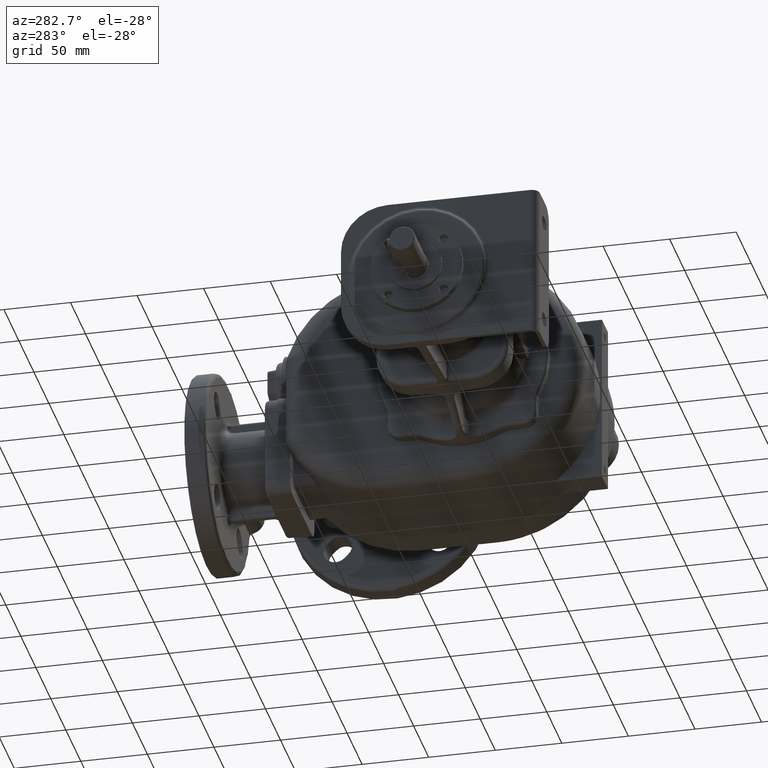
[diagram: clean part render]
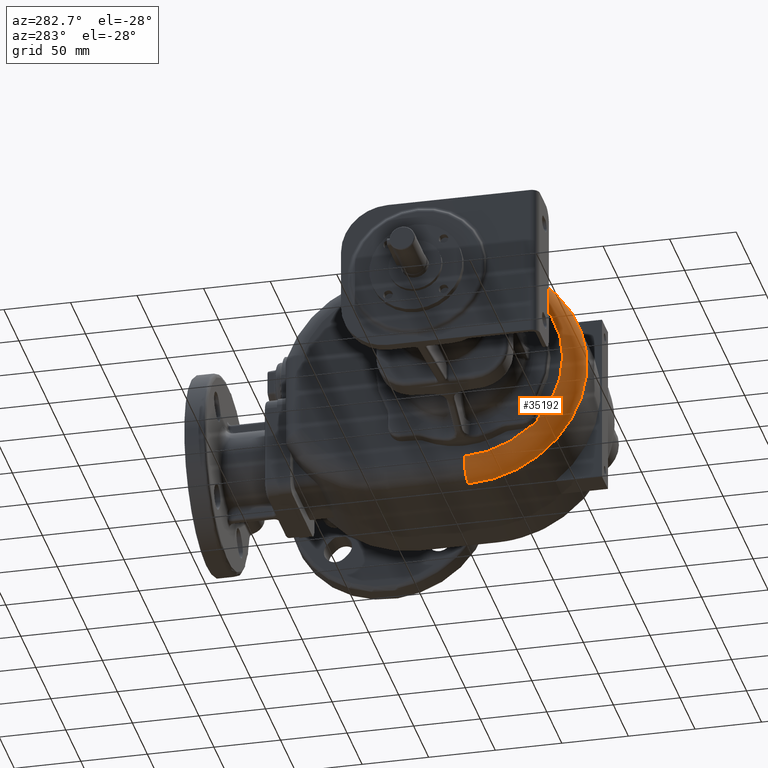
[diagram: same view with one face highlighted and labeled with its STEP entity id]
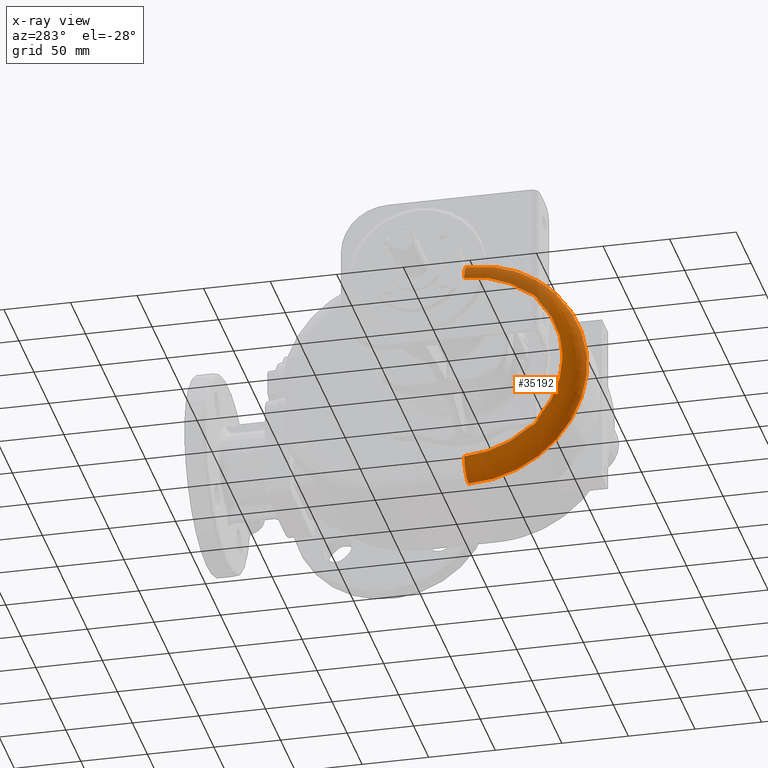
[diagram: x-ray of the same camera — body ghosted, the highlighted face saturated]
A machine part, auxiliary view. The second image highlights one B-rep face of the part: STEP entity #35192.
The next image is the same camera in x-ray: the body ghosted, the highlighted face saturated — about 17% of this face is hidden behind the body in this view.
In plain terms, the highlighted toroidal blend (fillet) surface has major radius 74 mm and minor (blend) radius 15 mm.
Its self-contained STEP definition (entity closure, byte-faithful):
#7487=CARTESIAN_POINT('',(-5.5E1,9.E1,0.E0));
#7488=DIRECTION('',(-1.E0,0.E0,0.E0));
#7489=DIRECTION('',(0.E0,0.E0,-1.E0));
#7490=AXIS2_PLACEMENT_3D('',#7487,#7488,#7489);
#7519=CARTESIAN_POINT('',(-7.E1,4.113389697939E1,-5.557071149067E1));
#7520=CARTESIAN_POINT('',(-7.E1,4.100834799897E1,-5.553276547036E1));
#7521=CARTESIAN_POINT('',(-6.999940865266E1,4.075854339994E1,
-5.545189538679E1));
#7522=CARTESIAN_POINT('',(-6.999712819687E1,4.038811304045E1,
-5.531568146909E1));
#7523=CARTESIAN_POINT('',(-6.999382106276E1,4.002317315893E1,
-5.516494956896E1));
#7524=CARTESIAN_POINT('',(-6.998982247787E1,3.966388818951E1,
-5.499971586116E1));
#7525=CARTESIAN_POINT('',(-6.998545162825E1,3.931148783948E1,
-5.482051202024E1));
#7526=CARTESIAN_POINT('',(-6.998098774072E1,3.896618793654E1,
-5.462744080697E1));
#7527=CARTESIAN_POINT('',(-6.997668758434E1,3.862897335330E1,
-5.442104999505E1));
#7528=CARTESIAN_POINT('',(-6.997276529736E1,3.830006693124E1,
-5.420149019882E1));
#7529=CARTESIAN_POINT('',(-6.996940724260E1,3.798025323308E1,
-5.396929160829E1));
#7530=CARTESIAN_POINT('',(-6.996675871345E1,3.766984630168E1,
-5.372470700687E1));
#7531=CARTESIAN_POINT('',(-6.996493147480E1,3.736938491667E1,
-5.346816636407E1));
#7532=CARTESIAN_POINT('',(-6.996399950805E1,3.707935215606E1,
-5.320010264157E1));
#7533=CARTESIAN_POINT('',(-6.996399893544E1,3.680013966244E1,
-5.292090352451E1));
#7534=CARTESIAN_POINT('',(-6.996493105397E1,3.653186498445E1,
-5.263065671596E1));
#7535=CARTESIAN_POINT('',(-6.996675941536E1,3.627522077447E1,
-5.233006407648E1));
#7536=CARTESIAN_POINT('',(-6.996940701071E1,3.603072465239E1,
-5.201976951938E1));
#7537=CARTESIAN_POINT('',(-6.997276667658E1,3.579842541484E1,
-5.169981065117E1));
#7538=CARTESIAN_POINT('',(-6.997668687462E1,3.557898738792E1,
-5.137108588497E1));
#7539=CARTESIAN_POINT('',(-6.998098958591E1,3.537247407558E1,
-5.103366629454E1));
#7540=CARTESIAN_POINT('',(-6.998545083848E1,3.517952299856E1,
-5.068857798368E1));
#7541=CARTESIAN_POINT('',(-6.998982424885E1,3.500020991990E1,
-5.033595818771E1));
#7542=CARTESIAN_POINT('',(-6.999382015162E1,3.483509075606E1,
-4.997691777959E1));
#7543=CARTESIAN_POINT('',(-6.999712939536E1,3.468426064746E1,
-4.961174375381E1));
#7544=CARTESIAN_POINT('',(-6.999940860393E1,3.454809893063E1,
-4.924143390710E1));
#7545=CARTESIAN_POINT('',(-7.E1,3.446723065668E1,-4.899163918688E1));
#7546=CARTESIAN_POINT('',(-7.E1,3.442928850933E1,-4.886610302061E1));
#7548=CARTESIAN_POINT('',(-7.E1,3.442928850933E1,4.886610302061E1));
#7549=CARTESIAN_POINT('',(-7.E1,3.446723087214E1,4.899163989974E1));
#7550=CARTESIAN_POINT('',(-6.999940859270E1,3.454809960215E1,4.924143572136E1));
#7551=CARTESIAN_POINT('',(-6.999712941221E1,3.468425979877E1,4.961174161490E1));
#7552=CARTESIAN_POINT('',(-6.999382012701E1,3.483509185709E1,4.997692036371E1));
#7553=CARTESIAN_POINT('',(-6.998982424792E1,3.500020993348E1,5.033595817086E1));
#7554=CARTESIAN_POINT('',(-6.998545081531E1,3.517952396188E1,5.068857984457E1));
#7555=CARTESIAN_POINT('',(-6.998098956662E1,3.537247496559E1,5.103366778306E1));
#7556=CARTESIAN_POINT('',(-6.997668685427E1,3.557898836623E1,5.137108747016E1));
#7557=CARTESIAN_POINT('',(-6.997276664062E1,3.579842768950E1,5.169981389086E1));
#7558=CARTESIAN_POINT('',(-6.996940699557E1,3.603072570092E1,5.201977095162E1));
#7559=CARTESIAN_POINT('',(-6.996675938571E1,3.627522431760E1,5.233006834185E1));
#7560=CARTESIAN_POINT('',(-6.996493107058E1,3.653186287497E1,5.263065420530E1));
#7561=CARTESIAN_POINT('',(-6.996399894219E1,3.680013627897E1,5.292089998389E1));
#7562=CARTESIAN_POINT('',(-6.996399949749E1,3.707934836723E1,5.320009910329E1));
#7563=CARTESIAN_POINT('',(-6.996493148203E1,3.736938620998E1,5.346816747817E1));
#7564=CARTESIAN_POINT('',(-6.996675868076E1,3.766984185147E1,5.372470336501E1));
#7565=CARTESIAN_POINT('',(-6.996940725732E1,3.798025488899E1,5.396929287810E1));
#7566=CARTESIAN_POINT('',(-6.997276525637E1,3.830006320184E1,5.420148758430E1));
#7567=CARTESIAN_POINT('',(-6.997668760034E1,3.862897474049E1,5.442105091403E1));
#7568=CARTESIAN_POINT('',(-6.998098771283E1,3.896618572211E1,5.462743949294E1));
#7569=CARTESIAN_POINT('',(-6.998545164288E1,3.931148900656E1,5.482051266805E1));
#7570=CARTESIAN_POINT('',(-6.998982246221E1,3.966388691734E1,5.499971521451E1));
#7571=CARTESIAN_POINT('',(-6.999382106859E1,4.002317349287E1,5.516494977137E1));
#7572=CARTESIAN_POINT('',(-6.999712821639E1,4.038811567086E1,5.531568248142E1));
#7573=CARTESIAN_POINT('',(-6.999940864829E1,4.075854301233E1,5.545189521985E1));
#7574=CARTESIAN_POINT('',(-7.E1,4.100834781196E1,5.553276541384E1));
#7575=CARTESIAN_POINT('',(-7.E1,4.113389697939E1,5.557071149067E1));
#7577=CARTESIAN_POINT('',(-5.5E1,9.E1,-7.4E1));
#7578=DIRECTION('',(0.E0,-1.E0,0.E0));
#7579=DIRECTION('',(-1.E0,0.E0,0.E0));
#7580=AXIS2_PLACEMENT_3D('',#7577,#7578,#7579);
#7737=CARTESIAN_POINT('',(-7.E1,9.E1,0.E0));
#7738=DIRECTION('',(-1.E0,0.E0,0.E0));
#7739=DIRECTION('',(0.E0,0.E0,-1.E0));
#7740=AXIS2_PLACEMENT_3D('',#7737,#7738,#7739);
#7764=CARTESIAN_POINT('',(-7.E1,9.E1,0.E0));
#7765=DIRECTION('',(-1.E0,0.E0,0.E0));
#7766=DIRECTION('',(0.E0,-6.603527435217E-1,7.509555606847E-1));
#7767=AXIS2_PLACEMENT_3D('',#7764,#7765,#7766);
#7885=CARTESIAN_POINT('',(-7.E1,9.E1,0.E0));
#7886=DIRECTION('',(-1.E0,0.E0,0.E0));
#7887=DIRECTION('',(0.E0,-7.509555606847E-1,-6.603527435217E-1));
#7888=AXIS2_PLACEMENT_3D('',#7885,#7886,#7887);
#22172=CARTESIAN_POINT('',(-5.5E1,9.E1,7.4E1));
#22173=DIRECTION('',(0.E0,1.E0,0.E0));
#22174=DIRECTION('',(-1.E0,0.E0,0.E0));
#22175=AXIS2_PLACEMENT_3D('',#22172,#22173,#22174);
#23667=CARTESIAN_POINT('',(-7.E1,9.E1,-7.4E1));
#23668=VERTEX_POINT('',#23667);
#23669=CARTESIAN_POINT('',(-5.5E1,9.000000000001E1,-8.9E1));
#23670=VERTEX_POINT('',#23669);
#23671=CARTESIAN_POINT('',(-5.5E1,9.E1,8.9E1));
#23672=VERTEX_POINT('',#23671);
#23673=CARTESIAN_POINT('',(-7.E1,9.E1,7.4E1));
#23675=VERTEX_POINT('',#23673);
#25451=CARTESIAN_POINT('',(-7.E1,4.113389697939E1,-5.557071149067E1));
#25452=VERTEX_POINT('',#25451);
#25453=CARTESIAN_POINT('',(-7.E1,3.442928850933E1,-4.886610302061E1));
#25455=VERTEX_POINT('',#25453);
#25463=CARTESIAN_POINT('',(-7.E1,3.442928850933E1,4.886610302061E1));
#25464=VERTEX_POINT('',#25463);
#25465=CARTESIAN_POINT('',(-7.E1,4.113389697939E1,5.557071149067E1));
#25466=VERTEX_POINT('',#25465);
#35170=CARTESIAN_POINT('',(-5.5E1,9.E1,0.E0));
#35171=DIRECTION('',(-1.E0,0.E0,0.E0));
#35172=DIRECTION('',(0.E0,5.454021871669E-3,-9.999851267121E-1));
#35173=AXIS2_PLACEMENT_3D('',#35170,#35171,#35172);
#35174=TOROIDAL_SURFACE('',#35173,7.4E1,1.5E1);
#35176=ORIENTED_EDGE('',*,*,#35175,.T.);
#35178=ORIENTED_EDGE('',*,*,#35177,.T.);
#35180=ORIENTED_EDGE('',*,*,#35179,.T.);
#35182=ORIENTED_EDGE('',*,*,#35181,.T.);
#35184=ORIENTED_EDGE('',*,*,#35183,.T.);
#35185=ORIENTED_EDGE('',*,*,#35150,.F.);
#35187=ORIENTED_EDGE('',*,*,#35186,.F.);
#35189=ORIENTED_EDGE('',*,*,#35188,.T.);
#35190=EDGE_LOOP('',(#35176,#35178,#35180,#35182,#35184,#35185,#35187,#35189));
#35191=FACE_OUTER_BOUND('',#35190,.F.);
#35192=ADVANCED_FACE('',(#35191),#35174,.T.);
#7491=CIRCLE('',#7490,8.9E1);
#7547=B_SPLINE_CURVE_WITH_KNOTS('',3,(#7519,#7520,#7521,#7522,#7523,#7524,#7525,
#7526,#7527,#7528,#7529,#7530,#7531,#7532,#7533,#7534,#7535,#7536,#7537,#7538,
#7539,#7540,#7541,#7542,#7543,#7544,#7545,#7546),.UNSPECIFIED.,.F.,.F.,(4,1,1,1,
1,1,1,1,1,1,1,1,1,1,1,1,1,1,1,1,1,1,1,1,1,4),(0.E0,4.E-2,8.E-2,1.2E-1,1.6E-1,
2.E-1,2.4E-1,2.8E-1,3.2E-1,3.6E-1,4.E-1,4.4E-1,4.8E-1,5.2E-1,5.6E-1,6.E-1,
6.4E-1,6.8E-1,7.2E-1,7.6E-1,8.E-1,8.4E-1,8.8E-1,9.2E-1,9.6E-1,1.E0),
.UNSPECIFIED.);
#7576=B_SPLINE_CURVE_WITH_KNOTS('',3,(#7548,#7549,#7550,#7551,#7552,#7553,#7554,
#7555,#7556,#7557,#7558,#7559,#7560,#7561,#7562,#7563,#7564,#7565,#7566,#7567,
#7568,#7569,#7570,#7571,#7572,#7573,#7574,#7575),.UNSPECIFIED.,.F.,.F.,(4,1,1,1,
1,1,1,1,1,1,1,1,1,1,1,1,1,1,1,1,1,1,1,1,1,4),(0.E0,4.E-2,8.E-2,1.2E-1,1.6E-1,
2.E-1,2.4E-1,2.8E-1,3.2E-1,3.6E-1,4.E-1,4.4E-1,4.8E-1,5.2E-1,5.6E-1,6.E-1,
6.4E-1,6.8E-1,7.2E-1,7.6E-1,8.E-1,8.4E-1,8.8E-1,9.2E-1,9.6E-1,1.E0),
.UNSPECIFIED.);
#7581=CIRCLE('',#7580,1.5E1);
#7741=CIRCLE('',#7740,7.4E1);
#7768=CIRCLE('',#7767,7.4E1);
#7889=CIRCLE('',#7888,7.4E1);
#22176=CIRCLE('',#22175,1.5E1);
#35150=EDGE_CURVE('',#23670,#23672,#7491,.T.);
#35175=EDGE_CURVE('',#25452,#25455,#7547,.T.);
#35177=EDGE_CURVE('',#25455,#25464,#7889,.T.);
#35179=EDGE_CURVE('',#25464,#25466,#7576,.T.);
#35181=EDGE_CURVE('',#25466,#23675,#7768,.T.);
#35183=EDGE_CURVE('',#23675,#23672,#22176,.T.);
#35186=EDGE_CURVE('',#23668,#23670,#7581,.T.);
#35188=EDGE_CURVE('',#23668,#25452,#7741,.T.);